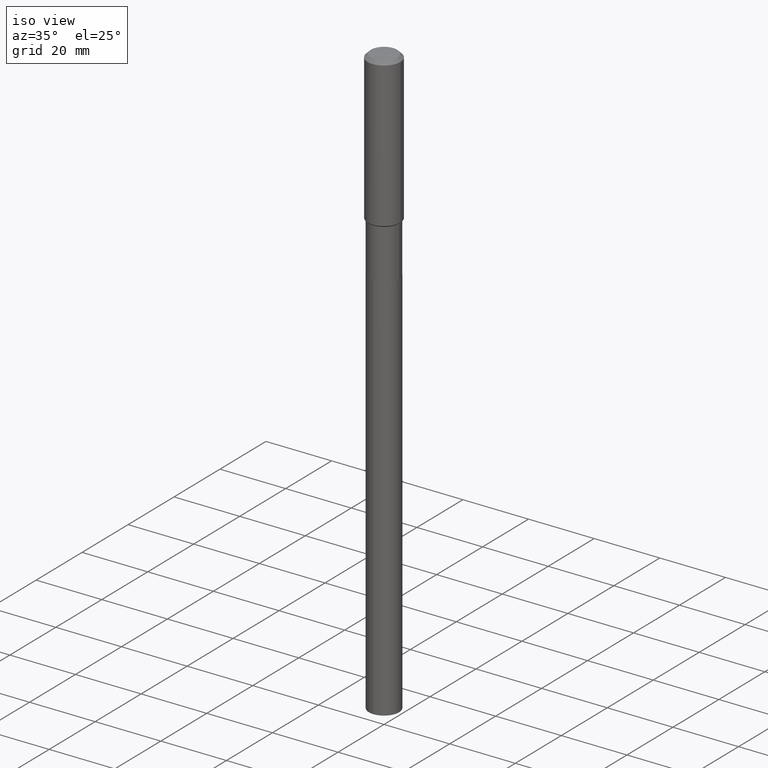
[diagram: clean part render]
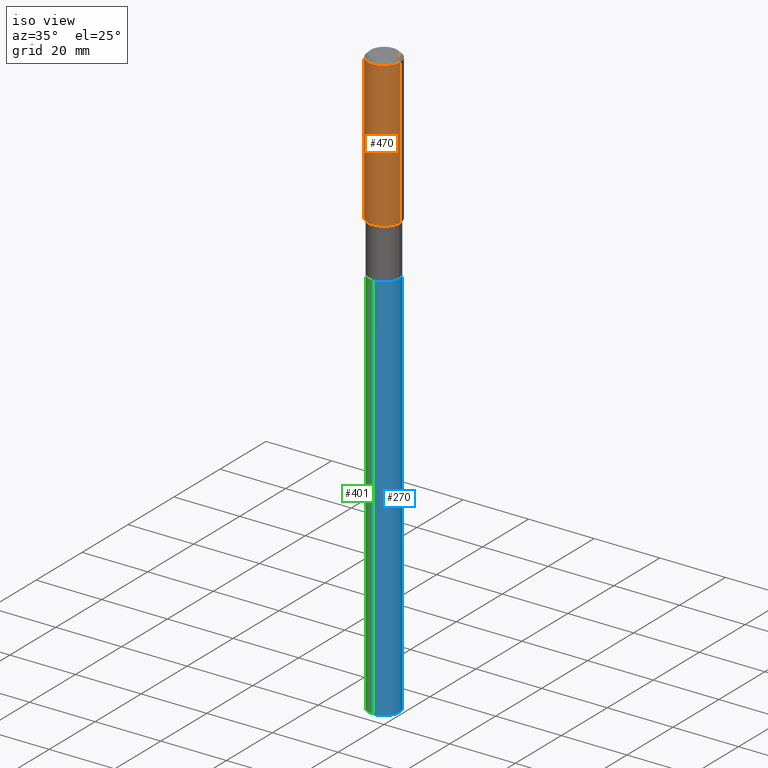
[diagram: same view with three faces highlighted in distinct colors, each labeled with its STEP entity id]
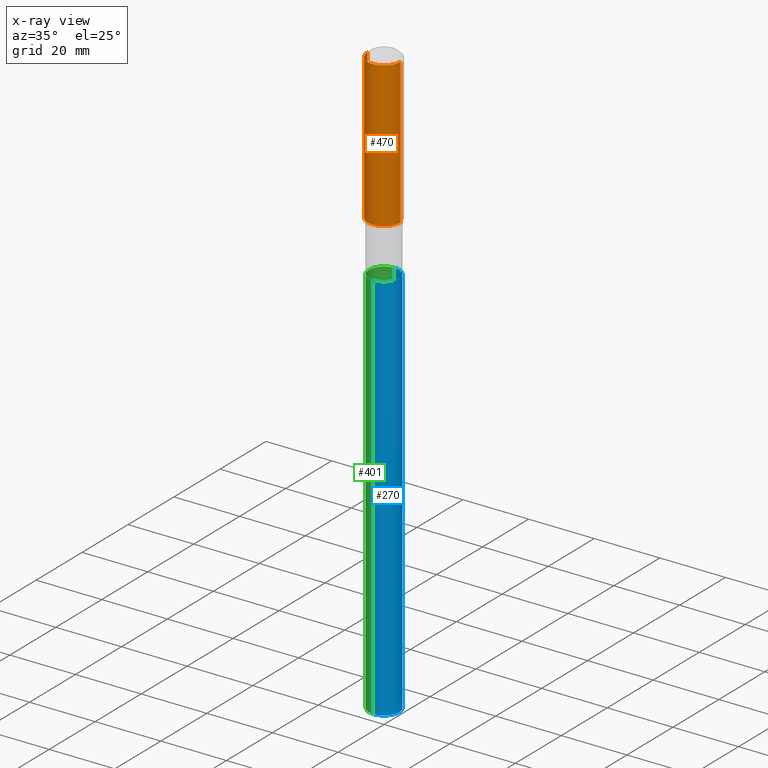
[diagram: x-ray of the same camera — body ghosted, the three highlighted faces saturated]
A machine part, iso view with three faces highlighted in distinct colors.
The next image is the same camera in x-ray (body ghosted, the three faces saturated) — at least one of them is partly hidden behind the body in this view.
Their STEP definitions:

[orange] entity #470 — the highlighted cylindrical surface (edge-blend (fillet) strip) has radius 5 mm, axis along (-0, 0, 1).
#6 = FACE_OUTER_BOUND ( 'NONE', #138, .T. ) ;
#7 = EDGE_CURVE ( 'NONE', #214, #440, #206, .T. ) ;
#11 = DIRECTION ( 'NONE',  ( -2.445468806185136597E-29, 3.491481338843145583E-15, 1.000000000000000000 ) ) ;
#29 = ORIENTED_EDGE ( 'NONE', *, *, #353, .T. ) ;
#32 = CARTESIAN_POINT ( 'NONE',  ( 9.627810689950948900E-31, -1.374596203102555561E-16, -0.03937000000000026589 ) ) ;
#35 = CARTESIAN_POINT ( 'NONE',  ( 4.352812201569232607E-29, -6.214662209073854707E-15, -1.779949999999999477 ) ) ;
#43 = EDGE_CURVE ( 'NONE', #189, #215, #411, .T. ) ;
#47 = CYLINDRICAL_SURFACE ( 'NONE', #119, 0.1968500000000001082 ) ;
#119 = AXIS2_PLACEMENT_3D ( 'NONE', #457, #11, #133 ) ;
#131 = VECTOR ( 'NONE', #487, 39.37007874015748143 ) ;
#133 = DIRECTION ( 'NONE',  ( 1.000000000000000000, -6.982962677686266711E-15, 4.876176775795935793E-29 ) ) ;
#138 = EDGE_LOOP ( 'NONE', ( #163, #475, #29, #280 ) ) ;
#140 = DIRECTION ( 'NONE',  ( 1.000000000000000000, -6.982962677686265922E-15, 0.000000000000000000 ) ) ;
#163 = ORIENTED_EDGE ( 'NONE', *, *, #237, .F. ) ;
#168 = DIRECTION ( 'NONE',  ( -2.445468806185136877E-29, 3.491481338843145188E-15, 1.000000000000000000 ) ) ;
#185 = DIRECTION ( 'NONE',  ( 1.000000000000000000, -6.982962677686265922E-15, 0.000000000000000000 ) ) ;
#188 = DIRECTION ( 'NONE',  ( -2.445468806185136597E-29, 3.491481338843145583E-15, 1.000000000000000000 ) ) ;
#189 = VERTEX_POINT ( 'NONE', #296 ) ;
#191 = AXIS2_PLACEMENT_3D ( 'NONE', #35, #188, #185 ) ;
#206 = CIRCLE ( 'NONE', #458, 0.1968500000000000250 ) ;
#214 = VERTEX_POINT ( 'NONE', #298 ) ;
#215 = VERTEX_POINT ( 'NONE', #256 ) ;
#237 = EDGE_CURVE ( 'NONE', #189, #214, #275, .T. ) ;
#241 = LINE ( 'NONE', #351, #131 ) ;
#244 = DIRECTION ( 'NONE',  ( -2.445468806185136597E-29, 3.491481338843145583E-15, 1.000000000000000000 ) ) ;
#256 = CARTESIAN_POINT ( 'NONE',  ( 0.1968500000000002192, -7.589258412176397893E-15, -1.779949999999999477 ) ) ;
#272 = CARTESIAN_POINT ( 'NONE',  ( -0.1968500000000001082, 1.398703375343757985E-15, -9.682923725166787881E-30 ) ) ;
#275 = LINE ( 'NONE', #272, #459 ) ;
#280 = ORIENTED_EDGE ( 'NONE', *, *, #7, .F. ) ;
#296 = CARTESIAN_POINT ( 'NONE',  ( -0.1968500000000002192, -4.815958833730096919E-15, -1.779949999999999477 ) ) ;
#298 = CARTESIAN_POINT ( 'NONE',  ( -0.1968500000000000250, -1.777357539348296567E-15, -0.03937000000000026589 ) ) ;
#351 = CARTESIAN_POINT ( 'NONE',  ( 0.1968500000000001082, -1.374596203102542397E-15, 9.598753983154305062E-30 ) ) ;
#353 = EDGE_CURVE ( 'NONE', #215, #440, #241, .T. ) ;
#411 = CIRCLE ( 'NONE', #191, 0.1968500000000002192 ) ;
#440 = VERTEX_POINT ( 'NONE', #478 ) ;
#457 = CARTESIAN_POINT ( 'NONE',  ( 0.000000000000000000, 0.000000000000000000, 0.000000000000000000 ) ) ;
#458 = AXIS2_PLACEMENT_3D ( 'NONE', #32, #244, #140 ) ;
#459 = VECTOR ( 'NONE', #168, 39.37007874015748143 ) ;
#470 = ADVANCED_FACE ( 'NONE', ( #6 ), #47, .T. ) ;
#475 = ORIENTED_EDGE ( 'NONE', *, *, #43, .T. ) ;
#478 = CARTESIAN_POINT ( 'NONE',  ( 0.1968500000000000250, -1.512055823412797189E-15, -0.03937000000000026589 ) ) ;
#487 = DIRECTION ( 'NONE',  ( -2.445468806185136877E-29, 3.491481338843145188E-15, 1.000000000000000000 ) ) ;

[blue] entity #270 — the highlighted cylindrical surface (edge-blend (fillet) strip) has radius 4.5999 mm, axis along (-0, 0, 1).
#12 = FACE_OUTER_BOUND ( 'NONE', #354, .T. ) ;
#27 = DIRECTION ( 'NONE',  ( -6.982962677686266711E-15, -1.000000000000000000, 3.016949744521549444E-15 ) ) ;
#88 = EDGE_CURVE ( 'NONE', #432, #360, #386, .T. ) ;
#96 = EDGE_CURVE ( 'NONE', #310, #109, #334, .T. ) ;
#99 = CARTESIAN_POINT ( 'NONE',  ( 5.852740493842886535E-29, -8.356162288253299515E-15, -2.393299999999999983 ) ) ;
#109 = VERTEX_POINT ( 'NONE', #320 ) ;
#114 = DIRECTION ( 'NONE',  ( -2.445443041397914078E-29, 3.491518235484888646E-15, 1.000000000000000000 ) ) ;
#126 = CARTESIAN_POINT ( 'NONE',  ( -1.264614540928809784E-15, -0.1811000000000247967, -7.093662812866134537 ) ) ;
#158 = DIRECTION ( 'NONE',  ( -2.445443041397914078E-29, 3.491518235484888646E-15, 1.000000000000000000 ) ) ;
#165 = DIRECTION ( 'NONE',  ( -2.445443041397914078E-29, 3.491518235484888646E-15, 1.000000000000000000 ) ) ;
#178 = CARTESIAN_POINT ( 'NONE',  ( 1.734721002661190394E-28, -2.476756476277045545E-14, -7.093662812866135425 ) ) ;
#193 = LINE ( 'NONE', #195, #435 ) ;
#195 = CARTESIAN_POINT ( 'NONE',  ( 1.286792894461599693E-15, 0.1810999999999916565, -2.393300000000000427 ) ) ;
#213 = EDGE_CURVE ( 'NONE', #109, #360, #193, .T. ) ;
#222 = CARTESIAN_POINT ( 'NONE',  ( 5.852740493842886535E-29, -8.356162288253299515E-15, -2.393299999999999983 ) ) ;
#245 = AXIS2_PLACEMENT_3D ( 'NONE', #99, #165, #466 ) ;
#270 = ADVANCED_FACE ( 'NONE', ( #12 ), #388, .T. ) ;
#292 = DIRECTION ( 'NONE',  ( -6.982962677686266711E-15, -1.000000000000000000, 6.033899489043098888E-15 ) ) ;
#310 = VERTEX_POINT ( 'NONE', #126 ) ;
#317 = CARTESIAN_POINT ( 'NONE',  ( -1.264614540928924366E-15, -0.1811000000000083932, -2.393299999999999095 ) ) ;
#320 = CARTESIAN_POINT ( 'NONE',  ( 1.286792894461715261E-15, 0.1810999999999753363, -7.093662812866136314 ) ) ;
#322 = EDGE_CURVE ( 'NONE', #310, #432, #371, .T. ) ;
#329 = DIRECTION ( 'NONE',  ( -2.445443041397914078E-29, 3.491518235484888646E-15, 1.000000000000000000 ) ) ;
#334 = CIRCLE ( 'NONE', #406, 0.1811000000000000110 ) ;
#338 = CARTESIAN_POINT ( 'NONE',  ( -1.264614540928924366E-15, -0.1811000000000083932, -2.393299999999999095 ) ) ;
#354 = EDGE_LOOP ( 'NONE', ( #413, #373, #446, #436 ) ) ;
#360 = VERTEX_POINT ( 'NONE', #489 ) ;
#368 = DIRECTION ( 'NONE',  ( -2.445443041397914078E-29, 3.491518235484888646E-15, 1.000000000000000000 ) ) ;
#371 = LINE ( 'NONE', #338, #372 ) ;
#372 = VECTOR ( 'NONE', #368, 39.37007874015748143 ) ;
#373 = ORIENTED_EDGE ( 'NONE', *, *, #213, .T. ) ;
#386 = CIRCLE ( 'NONE', #392, 0.1811000000000000110 ) ;
#388 = CYLINDRICAL_SURFACE ( 'NONE', #245, 0.1811000000000000110 ) ;
#392 = AXIS2_PLACEMENT_3D ( 'NONE', #222, #329, #27 ) ;
#406 = AXIS2_PLACEMENT_3D ( 'NONE', #178, #114, #292 ) ;
#413 = ORIENTED_EDGE ( 'NONE', *, *, #96, .T. ) ;
#432 = VERTEX_POINT ( 'NONE', #317 ) ;
#435 = VECTOR ( 'NONE', #158, 39.37007874015748143 ) ;
#436 = ORIENTED_EDGE ( 'NONE', *, *, #322, .F. ) ;
#446 = ORIENTED_EDGE ( 'NONE', *, *, #88, .F. ) ;
#466 = DIRECTION ( 'NONE',  ( -6.982962677686266711E-15, -1.000000000000000000, 3.016949744521549444E-15 ) ) ;
#489 = CARTESIAN_POINT ( 'NONE',  ( 1.286792894461715458E-15, 0.1810999999999916565, -2.393300000000000427 ) ) ;

[green] entity #401 — the highlighted cylindrical surface (edge-blend (fillet) strip) has radius 4.5999 mm, axis along (-0, 0, 1).
#3 = CARTESIAN_POINT ( 'NONE',  ( 5.852740493842886535E-29, -8.356162288253299515E-15, -2.393299999999999983 ) ) ;
#23 = EDGE_CURVE ( 'NONE', #109, #310, #153, .T. ) ;
#58 = FACE_OUTER_BOUND ( 'NONE', #228, .T. ) ;
#79 = DIRECTION ( 'NONE',  ( -6.982962677686266711E-15, -1.000000000000000000, 3.016949744521549444E-15 ) ) ;
#89 = CIRCLE ( 'NONE', #350, 0.1811000000000000110 ) ;
#109 = VERTEX_POINT ( 'NONE', #320 ) ;
#113 = DIRECTION ( 'NONE',  ( -2.445443041397914078E-29, 3.491518235484888646E-15, 1.000000000000000000 ) ) ;
#126 = CARTESIAN_POINT ( 'NONE',  ( -1.264614540928809784E-15, -0.1811000000000247967, -7.093662812866134537 ) ) ;
#153 = CIRCLE ( 'NONE', #207, 0.1811000000000000110 ) ;
#158 = DIRECTION ( 'NONE',  ( -2.445443041397914078E-29, 3.491518235484888646E-15, 1.000000000000000000 ) ) ;
#175 = ORIENTED_EDGE ( 'NONE', *, *, #213, .F. ) ;
#179 = ORIENTED_EDGE ( 'NONE', *, *, #322, .T. ) ;
#180 = DIRECTION ( 'NONE',  ( -6.982962677686266711E-15, -1.000000000000000000, 3.016949744521549444E-15 ) ) ;
#181 = EDGE_CURVE ( 'NONE', #360, #432, #89, .T. ) ;
#193 = LINE ( 'NONE', #195, #435 ) ;
#195 = CARTESIAN_POINT ( 'NONE',  ( 1.286792894461599693E-15, 0.1810999999999916565, -2.393300000000000427 ) ) ;
#207 = AXIS2_PLACEMENT_3D ( 'NONE', #223, #490, #290 ) ;
#213 = EDGE_CURVE ( 'NONE', #109, #360, #193, .T. ) ;
#223 = CARTESIAN_POINT ( 'NONE',  ( 1.734721002661190394E-28, -2.476756476277045545E-14, -7.093662812866135425 ) ) ;
#228 = EDGE_LOOP ( 'NONE', ( #175, #289, #179, #485 ) ) ;
#233 = AXIS2_PLACEMENT_3D ( 'NONE', #278, #113, #180 ) ;
#278 = CARTESIAN_POINT ( 'NONE',  ( 5.852740493842886535E-29, -8.356162288253299515E-15, -2.393299999999999983 ) ) ;
#289 = ORIENTED_EDGE ( 'NONE', *, *, #23, .T. ) ;
#290 = DIRECTION ( 'NONE',  ( -6.982962677686266711E-15, -1.000000000000000000, 6.033899489043098888E-15 ) ) ;
#310 = VERTEX_POINT ( 'NONE', #126 ) ;
#317 = CARTESIAN_POINT ( 'NONE',  ( -1.264614540928924366E-15, -0.1811000000000083932, -2.393299999999999095 ) ) ;
#320 = CARTESIAN_POINT ( 'NONE',  ( 1.286792894461715261E-15, 0.1810999999999753363, -7.093662812866136314 ) ) ;
#322 = EDGE_CURVE ( 'NONE', #310, #432, #371, .T. ) ;
#338 = CARTESIAN_POINT ( 'NONE',  ( -1.264614540928924366E-15, -0.1811000000000083932, -2.393299999999999095 ) ) ;
#339 = DIRECTION ( 'NONE',  ( -2.445443041397914078E-29, 3.491518235484888646E-15, 1.000000000000000000 ) ) ;
#350 = AXIS2_PLACEMENT_3D ( 'NONE', #3, #339, #79 ) ;
#360 = VERTEX_POINT ( 'NONE', #489 ) ;
#368 = DIRECTION ( 'NONE',  ( -2.445443041397914078E-29, 3.491518235484888646E-15, 1.000000000000000000 ) ) ;
#371 = LINE ( 'NONE', #338, #372 ) ;
#372 = VECTOR ( 'NONE', #368, 39.37007874015748143 ) ;
#401 = ADVANCED_FACE ( 'NONE', ( #58 ), #423, .T. ) ;
#423 = CYLINDRICAL_SURFACE ( 'NONE', #233, 0.1811000000000000110 ) ;
#432 = VERTEX_POINT ( 'NONE', #317 ) ;
#435 = VECTOR ( 'NONE', #158, 39.37007874015748143 ) ;
#485 = ORIENTED_EDGE ( 'NONE', *, *, #181, .F. ) ;
#489 = CARTESIAN_POINT ( 'NONE',  ( 1.286792894461715458E-15, 0.1810999999999916565, -2.393300000000000427 ) ) ;
#490 = DIRECTION ( 'NONE',  ( -2.445443041397914078E-29, 3.491518235484888646E-15, 1.000000000000000000 ) ) ;